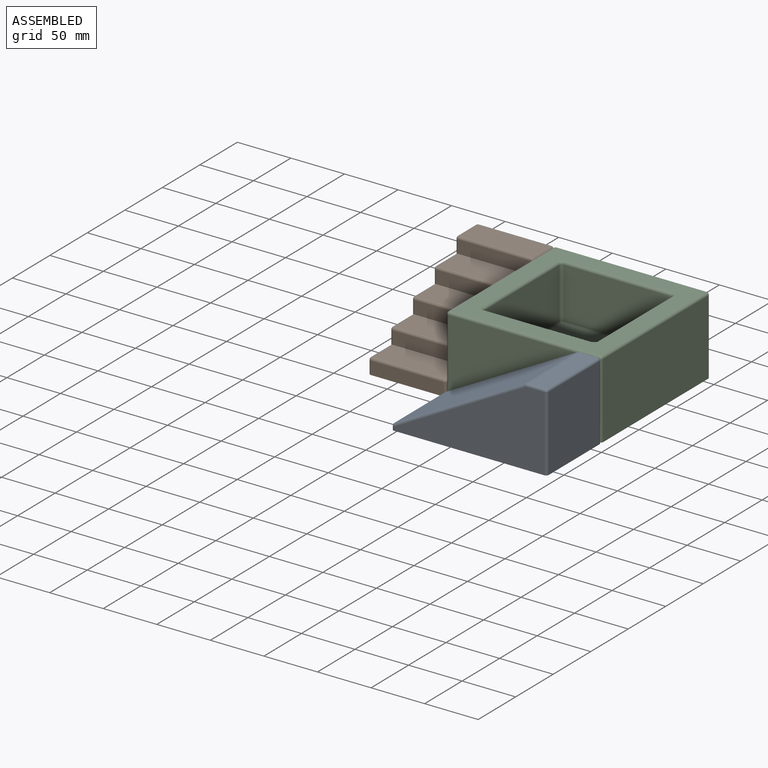
[diagram: assembled view]
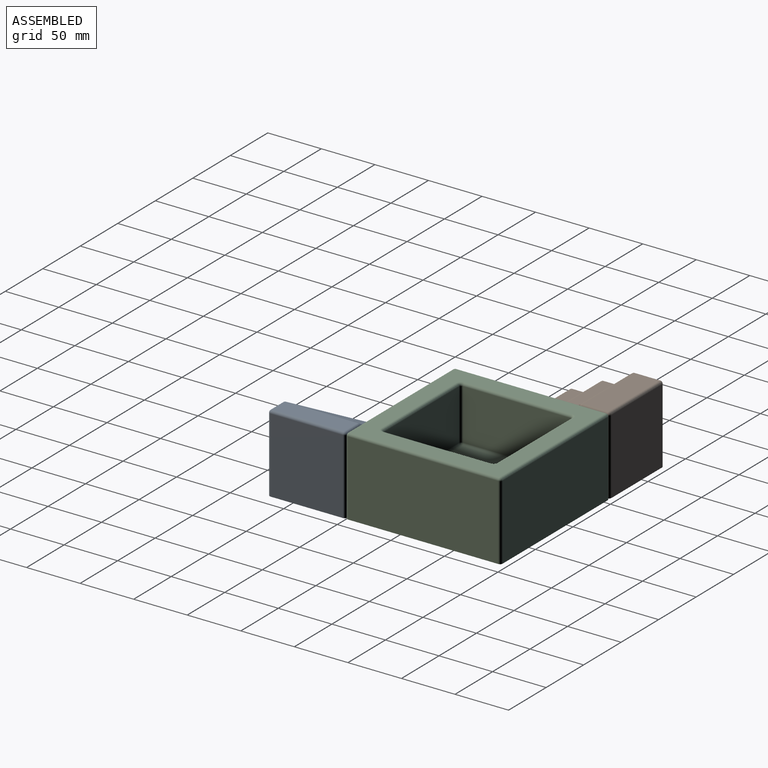
[diagram: assembled view, second angle]
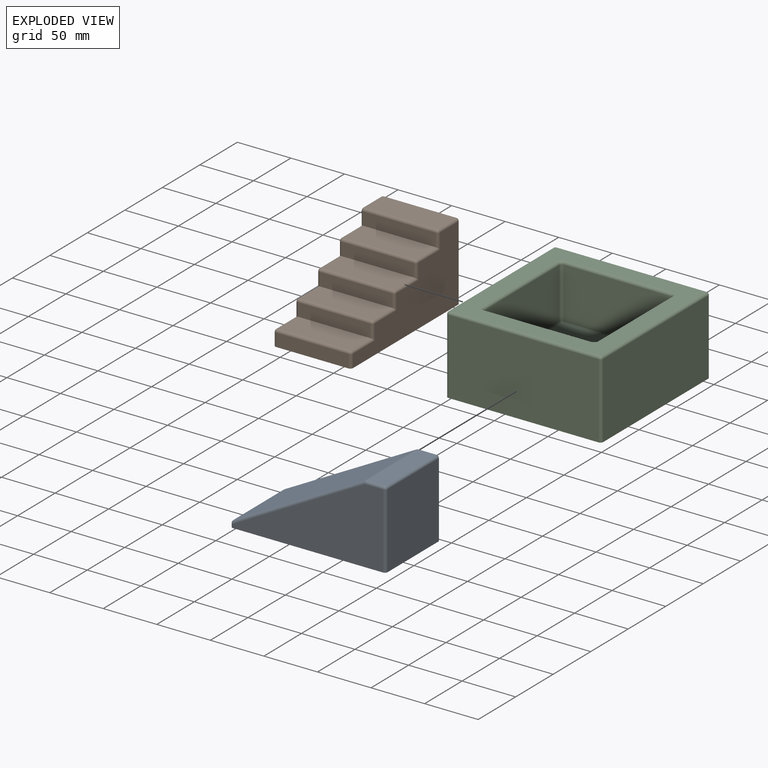
[diagram: exploded view]
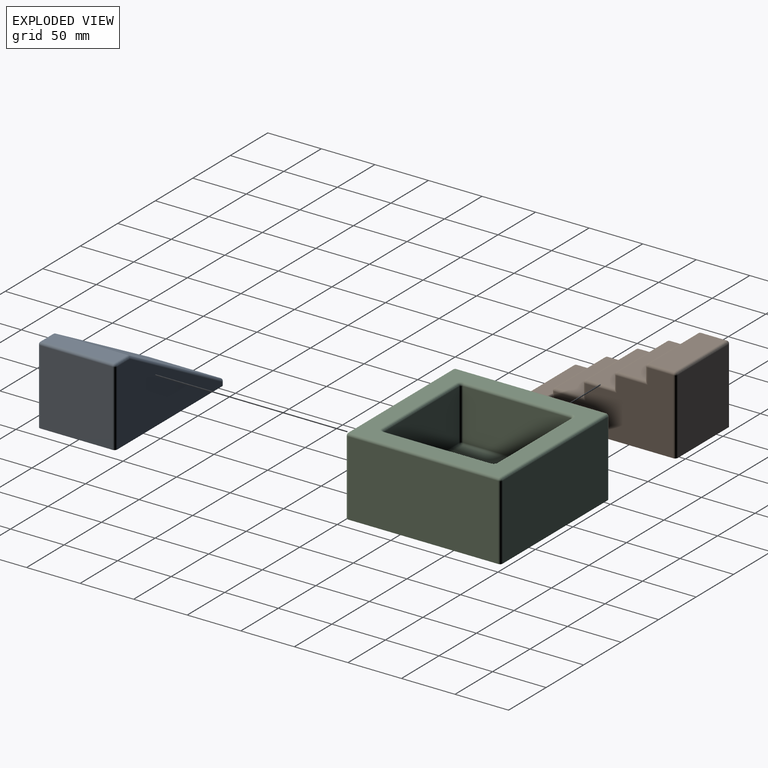
[diagram: exploded view, second angle]
ASSEMBLY  parts=3 mates=2
PART A: 24 faces, bbox 145x72.5x72.5 mm
  f0: plane 67.5x3.51mm, normal (-1,0,0), area 236.8mm2, adj f1,f7,f8,f9
  f1: plane 145x72.5mm, normal (0,0,-1), area 10507.1mm2, adj f0,f2,f5,f6,f7,f9,f17,f20
  f2: plane 70x67.5mm, normal (1,0,0), area 4725mm2, adj f1,f17,f20,f23
  f3: plane 67.5x16.87mm, normal (0,0,1), area 1138.6mm2, adj f13,f18,f19,f23
  f4: plane 123.13x67.5mm, normal (-0.48,0,0.88), area 9445.8mm2, adj f8,f12,f13,f14
  f5: plane 140x70mm, normal (0,-1,0), area 5706.4mm2, adj f1,f7,f12,f17,f18
  f6: plane 140x70mm, normal (0,1,0), area 5706.4mm2, adj f1,f9,f14,f19,f20
  f7: cylinder r=2.5mm len=3.51mm, axis (0,0,1), area 13.8mm2, adj f0,f1,f5,f10
  f8: cylinder r=2.5mm len=67.5mm, axis (0,1,0), area 181.5mm2, adj f0,f4,f10,f11
  f9: cylinder r=2.5mm len=3.51mm, axis (0,0,-1), area 13.8mm2, adj f0,f1,f6,f11
  f10: sphere r=2.5mm, area 6.7mm2, adj f7,f8,f12
  f11: sphere r=2.5mm, area 6.7mm2, adj f8,f9,f14
  f12: cylinder r=2.5mm len=124.32mm, axis (0.88,0,0.48), area 549.5mm2, adj f4,f5,f10,f15
  f13: cylinder r=2.5mm len=67.5mm, axis (0,1,0), area 83.6mm2, adj f3,f4,f15,f16
  f14: cylinder r=2.5mm len=124.32mm, axis (-0.88,0,-0.48), area 549.5mm2, adj f4,f6,f11,f16
  f15: sphere r=2.5mm, area 3.1mm2, adj f12,f13,f18
  f16: sphere r=2.5mm, area 3.1mm2, adj f13,f14,f19
  f17: cylinder r=2.5mm len=70mm, axis (0,0,-1), area 274.9mm2, adj f1,f2,f5,f21
  f18: cylinder r=2.5mm len=16.87mm, axis (1,0,0), area 66.2mm2, adj f3,f5,f15,f21
  f19: cylinder r=2.5mm len=16.87mm, axis (-1,0,0), area 66.2mm2, adj f3,f6,f16,f22
  f20: cylinder r=2.5mm len=70mm, axis (0,0,1), area 274.9mm2, adj f1,f2,f6,f22
  f21: sphere r=2.5mm, area 9.8mm2, adj f17,f18,f23
  f22: sphere r=2.5mm, area 9.8mm2, adj f19,f20,f23
  f23: cylinder r=2.5mm len=67.5mm, axis (0,1,0), area 265.1mm2, adj f2,f3,f21,f22
PART B: 54 faces, bbox 145x72.5x72.5 mm
  f0: plane 67.5x12mm, normal (-1,0,0), area 810mm2, adj f1,f14,f15,f16
  f1: plane 145x72.5mm, normal (0,0,-1), area 10507.1mm2, adj f0,f2,f12,f13,f14,f16,f47,f50
  f2: plane 70x67.5mm, normal (1,0,0), area 4725mm2, adj f1,f47,f50,f53
  f3: plane 67.5x24mm, normal (0,0,1), area 1620mm2, adj f43,f48,f49,f53
  f4: plane 67.5x12mm, normal (-1,0,0), area 810mm2, adj f5,f42,f43,f44
  f5: plane 67.5x26.5mm, normal (0,0,1), area 1788.7mm2, adj f4,f36,f40,f41
  f6: plane 67.5x12mm, normal (-1,0,0), area 810mm2, adj f7,f35,f36,f37
  f7: plane 67.5x26.5mm, normal (0,0,1), area 1788.7mm2, adj f6,f29,f33,f34
  f8: plane 67.5x12mm, normal (-1,0,0), area 810mm2, adj f9,f28,f29,f30
  f9: plane 67.5x26.5mm, normal (0,0,1), area 1788.7mm2, adj f8,f22,f26,f27
  f10: plane 67.5x12mm, normal (-1,0,0), area 810mm2, adj f11,f21,f22,f23
  f11: plane 67.5x26.5mm, normal (0,0,1), area 1788.7mm2, adj f10,f15,f19,f20
  f12: plane 140x70mm, normal (0,-1,0), area 5595mm2, adj f1,f14,f19,f21,f26,f28,f33,f35
  f13: plane 140x70mm, normal (0,1,0), area 5595mm2, adj f1,f16,f20,f23,f27,f30,f34,f37
  f14: cylinder r=2.5mm len=12mm, axis (0,0,1), area 47.1mm2, adj f0,f1,f12,f17
  f15: cylinder r=2.5mm len=67.5mm, axis (0,1,0), area 265.1mm2, adj f0,f11,f17,f18
  f16: cylinder r=2.5mm len=12mm, axis (0,0,-1), area 47.1mm2, adj f0,f1,f13,f18
  f17: sphere r=2.5mm, area 9.8mm2, adj f14,f15,f19
  f18: sphere r=2.5mm, area 9.8mm2, adj f15,f16,f20
  f19: cylinder r=2.5mm len=29mm, axis (1,0,0), area 107.6mm2, adj f11,f12,f17,f21
  f20: cylinder r=2.5mm len=29mm, axis (-1,0,0), area 107.6mm2, adj f11,f13,f18,f23
  f21: cylinder r=2.5mm len=14.5mm, axis (0,0,1), area 50.7mm2, adj f10,f12,f19,f24
  f22: cylinder r=2.5mm len=67.5mm, axis (0,1,0), area 265.1mm2, adj f9,f10,f24,f25
  f23: cylinder r=2.5mm len=14.5mm, axis (0,0,-1), area 50.7mm2, adj f10,f13,f20,f25
  f24: sphere r=2.5mm, area 9.8mm2, adj f21,f22,f26
  f25: sphere r=2.5mm, area 9.8mm2, adj f22,f23,f27
  f26: cylinder r=2.5mm len=29mm, axis (1,0,0), area 107.6mm2, adj f9,f12,f24,f28
  f27: cylinder r=2.5mm len=29mm, axis (-1,0,0), area 107.6mm2, adj f9,f13,f25,f30
  f28: cylinder r=2.5mm len=14.5mm, axis (0,0,1), area 50.7mm2, adj f8,f12,f26,f31
  f29: cylinder r=2.5mm len=67.5mm, axis (0,1,0), area 265.1mm2, adj f7,f8,f31,f32
  f30: cylinder r=2.5mm len=14.5mm, axis (0,0,-1), area 50.7mm2, adj f8,f13,f27,f32
  f31: sphere r=2.5mm, area 9.8mm2, adj f28,f29,f33
  f32: sphere r=2.5mm, area 9.8mm2, adj f29,f30,f34
  f33: cylinder r=2.5mm len=29mm, axis (1,0,0), area 107.6mm2, adj f7,f12,f31,f35
  f34: cylinder r=2.5mm len=29mm, axis (-1,0,0), area 107.6mm2, adj f7,f13,f32,f37
  f35: cylinder r=2.5mm len=14.5mm, axis (0,0,1), area 50.7mm2, adj f6,f12,f33,f38
  f36: cylinder r=2.5mm len=67.5mm, axis (0,1,0), area 265.1mm2, adj f5,f6,f38,f39
  f37: cylinder r=2.5mm len=14.5mm, axis (0,0,-1), area 50.7mm2, adj f6,f13,f34,f39
  f38: sphere r=2.5mm, area 9.8mm2, adj f35,f36,f40
  f39: sphere r=2.5mm, area 9.8mm2, adj f36,f37,f41
  f40: cylinder r=2.5mm len=29mm, axis (1,0,0), area 107.6mm2, adj f5,f12,f38,f42
  f41: cylinder r=2.5mm len=29mm, axis (-1,0,0), area 107.6mm2, adj f5,f13,f39,f44
  f42: cylinder r=2.5mm len=14.5mm, axis (0,0,1), area 50.7mm2, adj f4,f12,f40,f45
  f43: cylinder r=2.5mm len=67.5mm, axis (0,1,0), area 265.1mm2, adj f3,f4,f45,f46
  f44: cylinder r=2.5mm len=14.5mm, axis (0,0,-1), area 50.7mm2, adj f4,f13,f41,f46
  f45: sphere r=2.5mm, area 9.8mm2, adj f42,f43,f48
  f46: sphere r=2.5mm, area 9.8mm2, adj f43,f44,f49
  f47: cylinder r=2.5mm len=70mm, axis (0,0,-1), area 274.9mm2, adj f1,f2,f12,f51
  f48: cylinder r=2.5mm len=24mm, axis (1,0,0), area 94.2mm2, adj f3,f12,f45,f51
  f49: cylinder r=2.5mm len=24mm, axis (-1,0,0), area 94.2mm2, adj f3,f13,f46,f52
  f50: cylinder r=2.5mm len=70mm, axis (0,0,1), area 274.9mm2, adj f1,f2,f13,f52
  f51: sphere r=2.5mm, area 9.8mm2, adj f47,f48,f53
  f52: sphere r=2.5mm, area 9.8mm2, adj f49,f50,f53
  f53: cylinder r=2.5mm len=67.5mm, axis (0,1,0), area 265.1mm2, adj f2,f3,f51,f52
PART C: 43 faces, bbox 145x145x72.5 mm
  f0: plane 140x70mm, normal (0,-1,0), area 9800mm2, adj f9,f33,f39,f42
  f1: plane 140x70mm, normal (1,0,0), area 9800mm2, adj f9,f36,f40,f42
  f2: plane 140x70mm, normal (0,1,0), area 9800mm2, adj f9,f31,f35,f36
  f3: plane 100x47.5mm, normal (-1,0,0), area 4750mm2, adj f19,f24,f27,f30
  f4: plane 100x47.5mm, normal (0,1,0), area 4750mm2, adj f14,f15,f24,f25
  f5: plane 100x47.5mm, normal (1,0,0), area 4750mm2, adj f11,f15,f16,f17
  f6: plane 100x47.5mm, normal (0,-1,0), area 4750mm2, adj f17,f18,f26,f27
  f7: plane 140x70mm, normal (-1,0,0), area 9800mm2, adj f9,f31,f33,f34
  f8: plane 140x140mm, normal (0,0,1), area 7521.5mm2, adj f11,f12,f13,f14,f18,f19,f20,f23
  f9: plane 145x145mm, normal (0,0,-1), area 21019.6mm2, adj f0,f1,f2,f7,f31,f33,f36,f42
  f10: plane 100x100mm, normal (0,0,1), area 10000mm2, adj f16,f25,f26,f30
  f11: cylinder r=2.5mm len=100mm, axis (0,-1,0), area 392.7mm2, adj f5,f8,f12,f13
  f12: torus R=5mm, axis (0,0,1), area 21mm2, adj f8,f11,f14,f15
  f13: torus R=5mm, axis (0,0,1), area 21mm2, adj f8,f11,f17,f18
  f14: cylinder r=2.5mm len=100mm, axis (1,0,0), area 392.7mm2, adj f4,f8,f12,f20
  f15: cylinder r=2.5mm len=47.5mm, axis (0,0,1), area 186.5mm2, adj f4,f5,f12,f21
  f16: cylinder r=2.5mm len=100mm, axis (0,1,0), area 392.7mm2, adj f5,f10,f21,f22
  f17: cylinder r=2.5mm len=47.5mm, axis (0,0,-1), area 186.5mm2, adj f5,f6,f13,f22
  f18: cylinder r=2.5mm len=100mm, axis (-1,0,0), area 392.7mm2, adj f6,f8,f13,f23
  f19: cylinder r=2.5mm len=100mm, axis (0,1,0), area 392.7mm2, adj f3,f8,f20,f23
  f20: torus R=5mm, axis (0,0,1), area 21mm2, adj f8,f14,f19,f24
  f21: sphere r=2.5mm, area 9.8mm2, adj f15,f16,f25
  f22: sphere r=2.5mm, area 9.8mm2, adj f16,f17,f26
  f23: torus R=5mm, axis (0,0,1), area 21mm2, adj f8,f18,f19,f27
  f24: cylinder r=2.5mm len=47.5mm, axis (0,0,-1), area 186.5mm2, adj f3,f4,f20,f28
  f25: cylinder r=2.5mm len=100mm, axis (-1,0,0), area 392.7mm2, adj f4,f10,f21,f28
  f26: cylinder r=2.5mm len=100mm, axis (1,0,0), area 392.7mm2, adj f6,f10,f22,f29
  f27: cylinder r=2.5mm len=47.5mm, axis (0,0,1), area 186.5mm2, adj f3,f6,f23,f29
  f28: sphere r=2.5mm, area 9.8mm2, adj f24,f25,f30
  f29: sphere r=2.5mm, area 9.8mm2, adj f26,f27,f30
  f30: cylinder r=2.5mm len=100mm, axis (0,-1,0), area 392.7mm2, adj f3,f10,f28,f29
  f31: cylinder r=2.5mm len=70mm, axis (0,0,1), area 274.9mm2, adj f2,f7,f9,f32
  f32: sphere r=2.5mm, area 9.8mm2, adj f31,f34,f35
  f33: cylinder r=2.5mm len=70mm, axis (0,0,-1), area 274.9mm2, adj f0,f7,f9,f37
  f34: cylinder r=2.5mm len=140mm, axis (0,1,0), area 549.8mm2, adj f7,f8,f32,f37
  f35: cylinder r=2.5mm len=140mm, axis (1,0,0), area 549.8mm2, adj f2,f8,f32,f38
  f36: cylinder r=2.5mm len=70mm, axis (0,0,-1), area 274.9mm2, adj f1,f2,f9,f38
  f37: sphere r=2.5mm, area 9.8mm2, adj f33,f34,f39
  f38: sphere r=2.5mm, area 9.8mm2, adj f35,f36,f40
  f39: cylinder r=2.5mm len=140mm, axis (-1,0,0), area 549.8mm2, adj f0,f8,f37,f41
  f40: cylinder r=2.5mm len=140mm, axis (0,-1,0), area 549.8mm2, adj f1,f8,f38,f41
  f41: sphere r=2.5mm, area 9.8mm2, adj f39,f40,f42
  f42: cylinder r=2.5mm len=70mm, axis (0,0,1), area 274.9mm2, adj f0,f1,f9,f41
PLACE A t=(-28.55,-194.87,47.02)mm
PLACE B rot(axis=(0,0,1),90deg) t=(-171.23,-115.61,61.28)mm
PLACE C t=(-26.23,-122.37,26.33)mm fixed
MATE fastened B.f12 <-> C.f7  axis (1,0,0) through (-98.73,-52.37,26.33)mm
MATE fastened A.f6 <-> C.f0  axis (0,1,0) through (43.77,-194.87,26.33)mm
